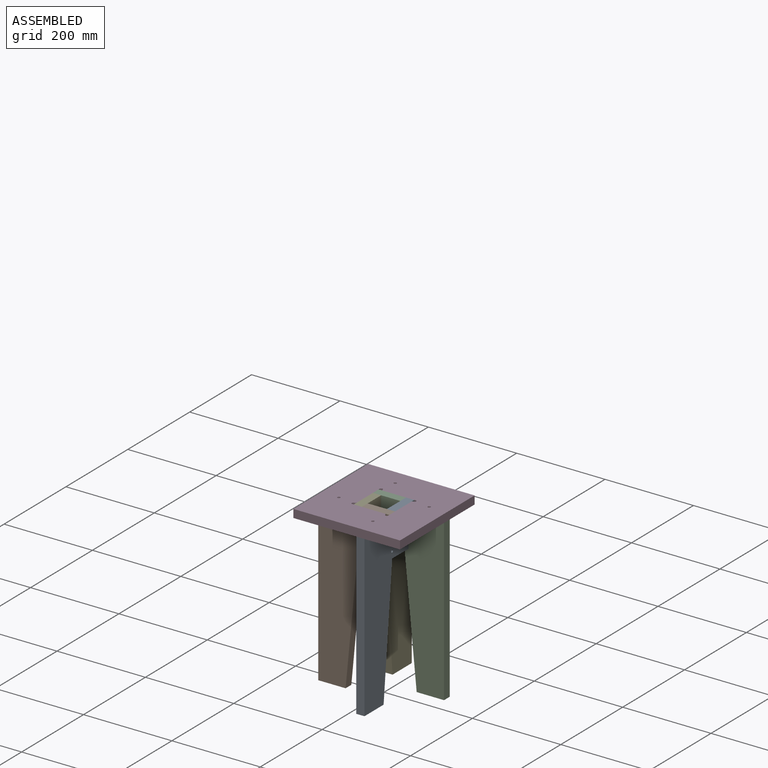
[diagram: assembled view]
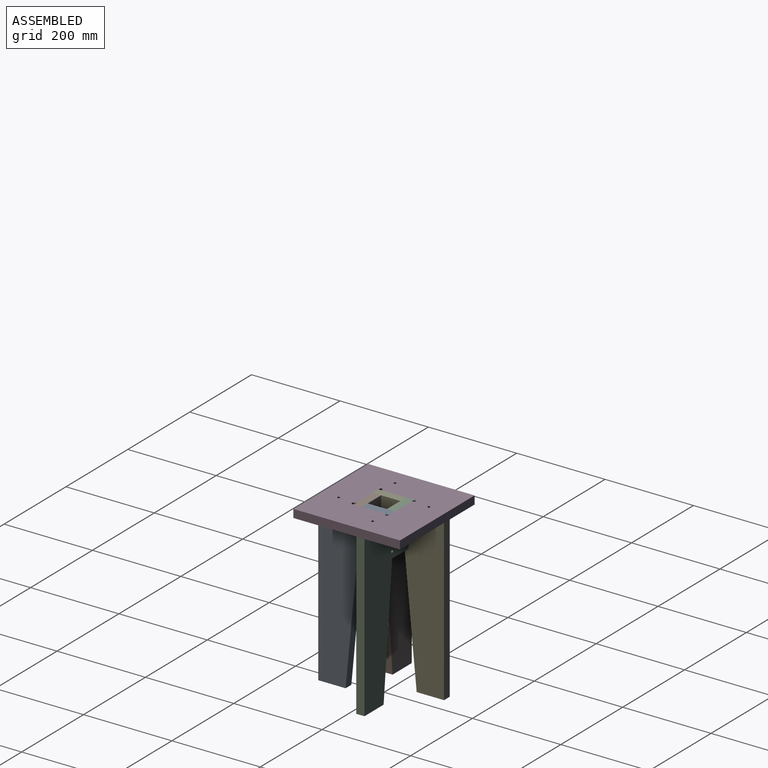
[diagram: assembled view, second angle]
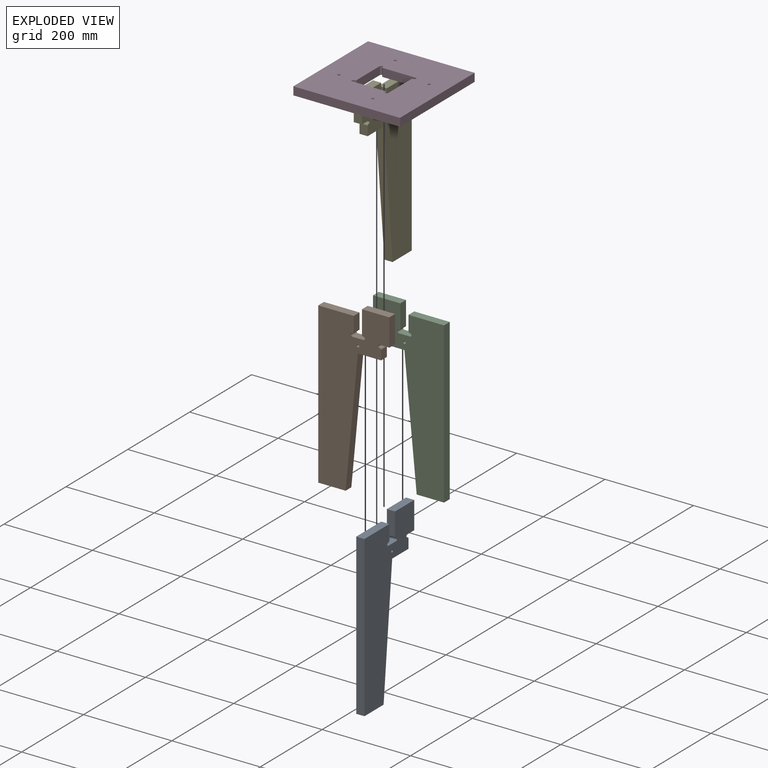
[diagram: exploded view]
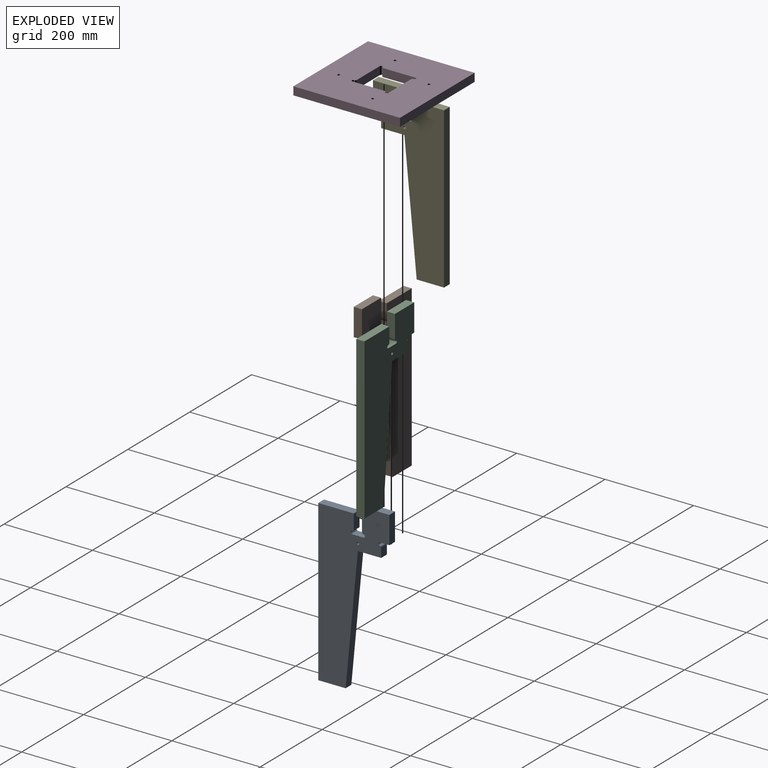
[diagram: exploded view, second angle]
ASSEMBLY  parts=5 mates=4
PART A: 21 faces, bbox 160.9x18.5x381 mm
  f0: plane 21.07x18.5mm, normal (1,0,0), area 389.7mm2, adj f2,f3,f9,f15
  f1: plane 33.53x18.5mm, normal (1,0,0), area 620.4mm2, adj f2,f3,f13,f18
  f2: plane 381x160.87mm, normal (0,1,0), area 33426.3mm2, adj f0,f1,f4,f5,f6,f7,f8,f9
  f3: plane 381x160.87mm, normal (0,-1,0), area 33426.3mm2, adj f0,f1,f4,f5,f6,f7,f8,f9
  f4: plane 25.1x18.5mm, normal (0,0,1), area 464.3mm2, adj f2,f3,f16,f19
  f5: plane 52.03x18.5mm, normal (-1,0,0), area 962.6mm2, adj f2,f3,f6,f17
  f6: plane 61.93x18.5mm, normal (0,0,1), area 1145.8mm2, adj f2,f3,f5,f7
  f7: plane 61.93x18.5mm, normal (1,0,0), area 1145.8mm2, adj f2,f3,f6,f8
  f8: plane 21.8x18.5mm, normal (0,0,-1), area 403.3mm2, adj f2,f3,f7,f14
  f9: plane 52.68x18.5mm, normal (0,0,-1), area 974.6mm2, adj f0,f2,f3,f10
  f10: plane 288.1x27.75mm, normal (1,0,-0.1), area 5354.5mm2, adj f2,f3,f9,f11
  f11: plane 61.93x18.5mm, normal (0,0,-1), area 1145.8mm2, adj f2,f3,f10,f12
  f12: plane 362.5x18.5mm, normal (-1,0,0), area 6706.3mm2, adj f2,f3,f11,f13
  f13: plane 80.43x18.5mm, normal (0,0,1), area 1488mm2, adj f1,f2,f3,f12
  f14: cylinder r=3.3mm len=18.5mm, axis (0,-1,0), area 191.8mm2, adj f2,f3,f8,f15
  f15: cylinder r=3.3mm len=18.5mm, axis (0,-1,0), area 95.9mm2, adj f0,f2,f3,f14
  f16: cylinder r=3.3mm len=18.5mm, axis (0,-1,0), area 191.8mm2, adj f2,f3,f4,f17
  f17: cylinder r=3.3mm len=18.5mm, axis (0,-1,0), area 95.9mm2, adj f2,f3,f5,f16
  f18: cylinder r=3.3mm len=18.5mm, axis (0,-1,0), area 95.9mm2, adj f1,f2,f3,f19
  f19: cylinder r=3.3mm len=18.5mm, axis (0,-1,0), area 191.8mm2, adj f2,f3,f4,f18
  f20: cylinder r=3mm len=18.5mm, axis (0,-1,0), area 348.7mm2, adj f2,f3
PART B: same geometry as A
PART C: same geometry as A
PART D: 22 faces, bbox 241.3x241.3x18.5 mm
  f0: plane 73.83x18.5mm, normal (0,-1,0), area 1365.9mm2, adj f2,f3,f15,f16
  f1: plane 73.83x18.5mm, normal (1,0,0), area 1365.9mm2, adj f2,f3,f10,f17
  f2: plane 241.3x241.3mm, normal (0,0,-1), area 51478.2mm2, adj f0,f1,f4,f5,f6,f7,f8,f9
  f3: plane 241.3x241.3mm, normal (0,0,1), area 51478.2mm2, adj f0,f1,f4,f5,f6,f7,f8,f9
  f4: plane 73.83x18.5mm, normal (-1,0,0), area 1365.9mm2, adj f2,f3,f13,f14
  f5: plane 73.83x18.5mm, normal (0,1,0), area 1365.9mm2, adj f2,f3,f11,f12
  f6: plane 241.3x18.5mm, normal (1,0,0), area 4464mm2, adj f2,f3,f7,f9
  f7: plane 241.3x18.5mm, normal (0,1,0), area 4464mm2, adj f2,f3,f6,f8
  f8: plane 241.3x18.5mm, normal (-1,0,0), area 4464mm2, adj f2,f3,f7,f9
  f9: plane 241.3x18.5mm, normal (0,-1,0), area 4464mm2, adj f2,f3,f6,f8
  f10: cylinder r=3.3mm len=18.5mm, axis (0,0,1), area 95.9mm2, adj f1,f2,f3,f11
  f11: cylinder r=3.3mm len=18.5mm, axis (0,0,1), area 191.8mm2, adj f2,f3,f5,f10
  f12: cylinder r=3.3mm len=18.5mm, axis (0,0,1), area 95.9mm2, adj f2,f3,f5,f13
  f13: cylinder r=3.3mm len=18.5mm, axis (0,0,1), area 191.8mm2, adj f2,f3,f4,f12
  f14: cylinder r=3.3mm len=18.5mm, axis (0,0,1), area 95.9mm2, adj f2,f3,f4,f15
  f15: cylinder r=3.3mm len=18.5mm, axis (0,0,1), area 191.8mm2, adj f0,f2,f3,f14
  f16: cylinder r=3.3mm len=18.5mm, axis (0,0,1), area 95.9mm2, adj f0,f2,f3,f17
  f17: cylinder r=3.3mm len=18.5mm, axis (0,0,1), area 191.8mm2, adj f1,f2,f3,f16
  f18: cylinder r=3mm len=18.5mm, axis (0,0,1), area 348.7mm2, adj f2,f3
  f19: cylinder r=3mm len=18.5mm, axis (0,0,1), area 348.7mm2, adj f2,f3
  f20: cylinder r=3mm len=18.5mm, axis (0,0,1), area 348.7mm2, adj f2,f3
  f21: cylinder r=3mm len=18.5mm, axis (0,0,1), area 348.7mm2, adj f2,f3
PART E: same geometry as A
PLACE A rot(axis=(0,0,1),90deg) t=(0,0,0)mm
PLACE B at identity
PLACE C rot(axis=(0,0,1),180deg) t=(0,0,0)mm
PLACE D at identity fixed
PLACE E rot(axis=(0,0,-1),90deg) t=(0,0,0)mm
MATE fastened C.f6 <-> A.f6  axis (0,0,1) through (21.72,40.22,0)mm
MATE fastened B.f6 <-> A.f6  axis (0,0,1) through (40.22,-21.72,0)mm
MATE fastened E.f6 <-> C.f6  axis (0,0,1) through (-40.22,21.72,0)mm
MATE fastened A.f6 <-> D.f3  axis (0,0,1) through (40.22,40.22,0)mm
